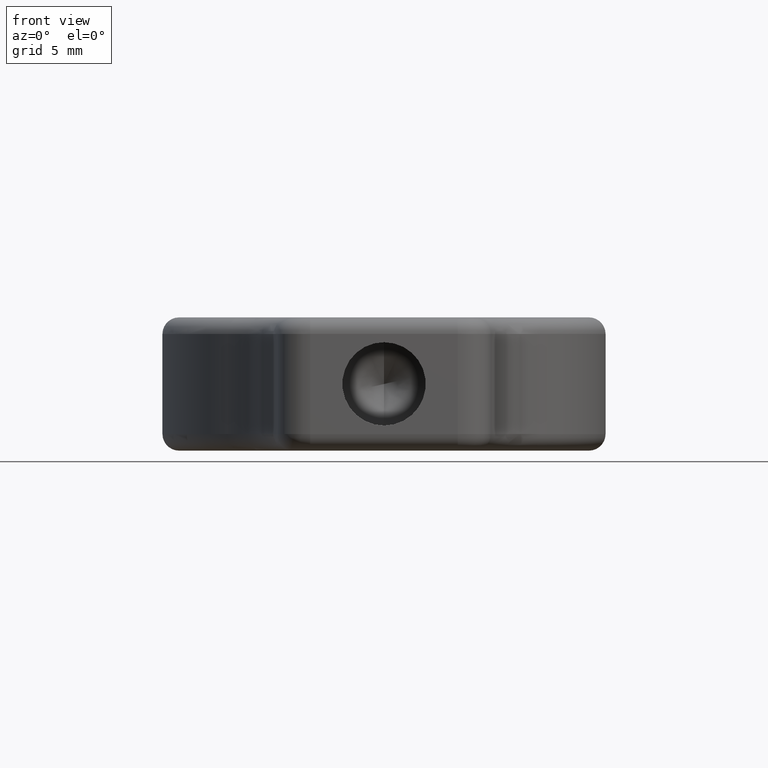
[diagram: clean part render]
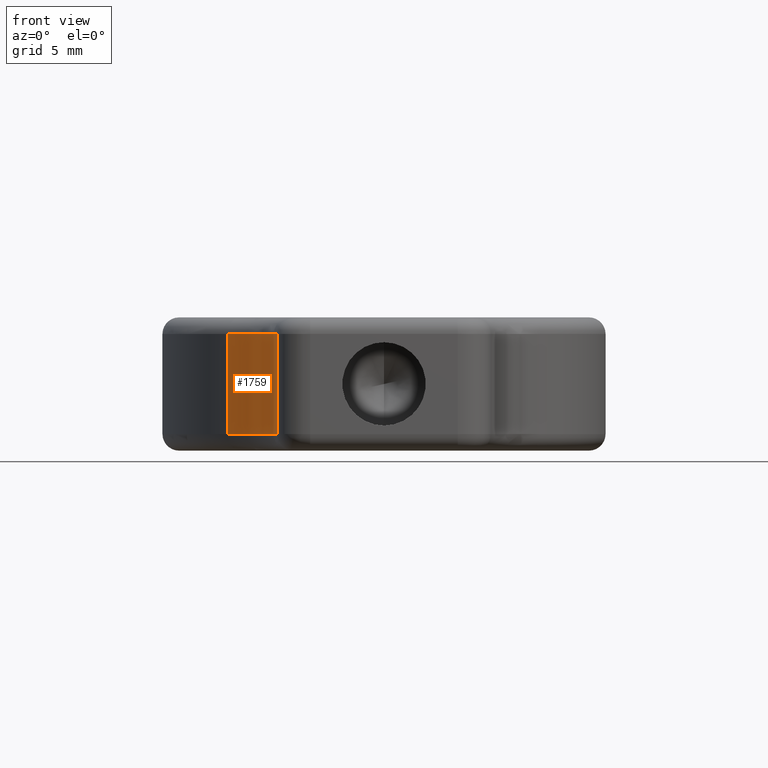
[diagram: same view with one face highlighted and labeled with its STEP entity id]
A machine part, front view. The second image highlights one B-rep face of the part: STEP entity #1759.
In plain terms, the highlighted cylindrical surface (partial cylindrical patch) has radius 10 mm, axis along (-0, -0, -1).
Its self-contained STEP definition (entity closure, byte-faithful):
#170 = CIRCLE ( 'NONE', #718, 10.00000000000000500 ) ;
#174 = DIRECTION ( 'NONE',  ( 1.000000000000000000, 8.673617379884030500E-016, 0.0000000000000000000 ) ) ;
#178 = CARTESIAN_POINT ( 'NONE',  ( -7.141909063653896400, -7.809827232950138600, 38.00000000000000700 ) ) ;
#305 = EDGE_CURVE ( 'NONE', #482, #921, #1630, .T. ) ;
#326 = DIRECTION ( 'NONE',  ( -0.0000000000000000000, 0.0000000000000000000, 1.000000000000000000 ) ) ;
#479 = DIRECTION ( 'NONE',  ( -1.000000000000000000, 0.0000000000000000000, 0.0000000000000000000 ) ) ;
#480 = EDGE_CURVE ( 'NONE', #873, #2117, #170, .T. ) ;
#482 = VERTEX_POINT ( 'NONE', #1608 ) ;
#494 = DIRECTION ( 'NONE',  ( 1.000000000000000000, 0.0000000000000000000, 0.0000000000000000000 ) ) ;
#528 = DIRECTION ( 'NONE',  ( -0.0000000000000000000, -0.0000000000000000000, -1.000000000000000000 ) ) ;
#582 = CYLINDRICAL_SURFACE ( 'NONE', #1805, 10.00000000000000500 ) ;
#595 = AXIS2_PLACEMENT_3D ( 'NONE', #1541, #326, #494 ) ;
#699 = ORIENTED_EDGE ( 'NONE', *, *, #970, .T. ) ;
#718 = AXIS2_PLACEMENT_3D ( 'NONE', #1586, #1256, #174 ) ;
#816 = DIRECTION ( 'NONE',  ( -0.0000000000000000000, -0.0000000000000000000, -1.000000000000000000 ) ) ;
#873 = VERTEX_POINT ( 'NONE', #1190 ) ;
#887 = ORIENTED_EDGE ( 'NONE', *, *, #480, .T. ) ;
#921 = VERTEX_POINT ( 'NONE', #1050 ) ;
#946 = EDGE_CURVE ( 'NONE', #482, #2117, #2147, .T. ) ;
#970 = EDGE_CURVE ( 'NONE', #921, #873, #988, .T. ) ;
#988 = LINE ( 'NONE', #178, #2227 ) ;
#1050 = CARTESIAN_POINT ( 'NONE',  ( -7.141909063653896400, -7.809827232950138600, 37.00000000000000700 ) ) ;
#1072 = FACE_OUTER_BOUND ( 'NONE', #1848, .T. ) ;
#1190 = CARTESIAN_POINT ( 'NONE',  ( -7.141909063653896400, -7.809827232950138600, 31.00000000000000400 ) ) ;
#1239 = CARTESIAN_POINT ( 'NONE',  ( -4.198156721066068200, -14.37385298174623600, 38.00000000000000700 ) ) ;
#1256 = DIRECTION ( 'NONE',  ( 0.0000000000000000000, -0.0000000000000000000, -1.000000000000000000 ) ) ;
#1271 = CARTESIAN_POINT ( 'NONE',  ( -4.198156721066068200, -14.37385298174623600, 31.00000000000000400 ) ) ;
#1541 = CARTESIAN_POINT ( 'NONE',  ( -14.18377493755407800, -14.90997688024632200, 37.00000000000000700 ) ) ;
#1548 = VECTOR ( 'NONE', #1947, 1000.000000000000000 ) ;
#1586 = CARTESIAN_POINT ( 'NONE',  ( -14.18377493755407800, -14.90997688024632200, 31.00000000000000400 ) ) ;
#1608 = CARTESIAN_POINT ( 'NONE',  ( -4.198156721066068200, -14.37385298174623600, 37.00000000000000700 ) ) ;
#1630 = CIRCLE ( 'NONE', #595, 10.00000000000000500 ) ;
#1759 = ADVANCED_FACE ( 'NONE', ( #1072 ), #582, .F. ) ;
#1805 = AXIS2_PLACEMENT_3D ( 'NONE', #2235, #816, #479 ) ;
#1848 = EDGE_LOOP ( 'NONE', ( #699, #887, #2098, #1973 ) ) ;
#1947 = DIRECTION ( 'NONE',  ( -0.0000000000000000000, -0.0000000000000000000, -1.000000000000000000 ) ) ;
#1973 = ORIENTED_EDGE ( 'NONE', *, *, #305, .T. ) ;
#2098 = ORIENTED_EDGE ( 'NONE', *, *, #946, .F. ) ;
#2117 = VERTEX_POINT ( 'NONE', #1271 ) ;
#2147 = LINE ( 'NONE', #1239, #1548 ) ;
#2227 = VECTOR ( 'NONE', #528, 1000.000000000000000 ) ;
#2235 = CARTESIAN_POINT ( 'NONE',  ( -14.18377493755407800, -14.90997688024632200, 38.00000000000000700 ) ) ;